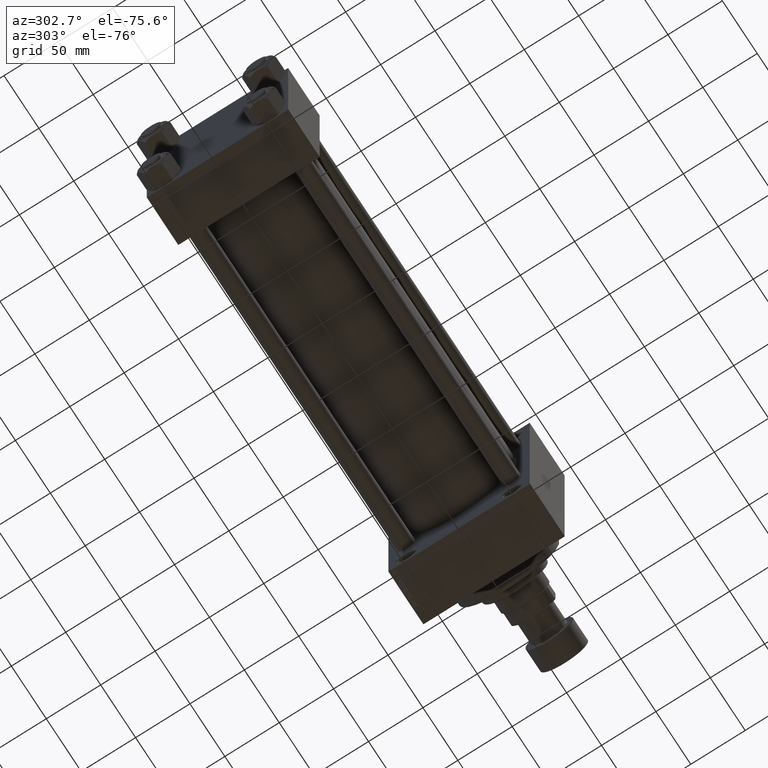
[diagram: clean part render]
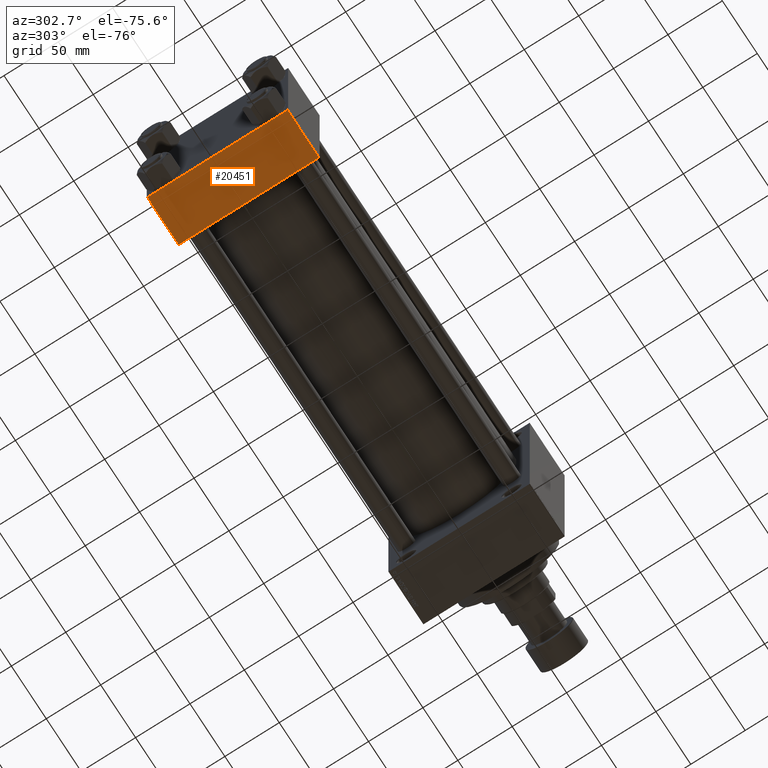
[diagram: same view with one face highlighted and labeled with its STEP entity id]
A machine part, auxiliary view. The second image highlights one B-rep face of the part: STEP entity #20451.
In plain terms, the highlighted planar face has unit normal (0, 0, -1).
Its self-contained STEP definition (entity closure, byte-faithful):
#1004 = CARTESIAN_POINT ( 'NONE',  ( 45.00000000000000000, 64.49999999999997158, -64.99999999999998579 ) ) ;
#3953 = EDGE_LOOP ( 'NONE', ( #17913, #35981, #11791, #25910 ) ) ;
#5525 = PLANE ( 'NONE',  #27889 ) ;
#6583 = CARTESIAN_POINT ( 'NONE',  ( 0.000000000000000000, -64.49999999999994316, -65.00000000000000000 ) ) ;
#6928 = CARTESIAN_POINT ( 'NONE',  ( 45.00000000000000000, 64.49999999999997158, -64.99999999999998579 ) ) ;
#7716 = DIRECTION ( 'NONE',  ( 0.000000000000000000, -1.000000000000000000, -1.067522139062650425E-16 ) ) ;
#11380 = CARTESIAN_POINT ( 'NONE',  ( 0.000000000000000000, 65.00000000000000000, -64.99999999999998579 ) ) ;
#11665 = VECTOR ( 'NONE', #11714, 1000.000000000000000 ) ;
#11714 = DIRECTION ( 'NONE',  ( -1.000000000000000000, 0.000000000000000000, 0.000000000000000000 ) ) ;
#11791 = ORIENTED_EDGE ( 'NONE', *, *, #26604, .T. ) ;
#12043 = VERTEX_POINT ( 'NONE', #22847 ) ;
#13903 = DIRECTION ( 'NONE',  ( 0.000000000000000000, -1.000000000000000000, -1.067522139062650425E-16 ) ) ;
#14084 = DIRECTION ( 'NONE',  ( 0.000000000000000000, 1.000000000000000000, 1.067522139062650548E-16 ) ) ;
#15936 = VECTOR ( 'NONE', #7716, 1000.000000000000000 ) ;
#16751 = CARTESIAN_POINT ( 'NONE',  ( 45.00000000000000000, 65.00000000000000000, -64.99999999999998579 ) ) ;
#17913 = ORIENTED_EDGE ( 'NONE', *, *, #29396, .F. ) ;
#19333 = DIRECTION ( 'NONE',  ( 1.000000000000000000, 0.000000000000000000, 0.000000000000000000 ) ) ;
#19578 = LINE ( 'NONE', #1004, #35787 ) ;
#20451 = ADVANCED_FACE ( 'NONE', ( #38944 ), #5525, .T. ) ;
#20477 = CARTESIAN_POINT ( 'NONE',  ( 45.00000000000000000, 65.00000000000000000, -64.99999999999998579 ) ) ;
#22594 = VERTEX_POINT ( 'NONE', #6583 ) ;
#22847 = CARTESIAN_POINT ( 'NONE',  ( 45.00000000000000000, -64.49999999999994316, -65.00000000000000000 ) ) ;
#23875 = LINE ( 'NONE', #30245, #11665 ) ;
#24784 = DIRECTION ( 'NONE',  ( 0.000000000000000000, 1.067522139062650548E-16, -1.000000000000000000 ) ) ;
#25910 = ORIENTED_EDGE ( 'NONE', *, *, #45276, .T. ) ;
#26604 = EDGE_CURVE ( 'NONE', #35291, #12043, #46595, .T. ) ;
#27889 = AXIS2_PLACEMENT_3D ( 'NONE', #16751, #24784, #14084 ) ;
#28751 = CARTESIAN_POINT ( 'NONE',  ( 0.000000000000000000, 64.49999999999997158, -64.99999999999998579 ) ) ;
#29396 = EDGE_CURVE ( 'NONE', #44191, #22594, #44804, .T. ) ;
#29687 = VECTOR ( 'NONE', #13903, 1000.000000000000000 ) ;
#30245 = CARTESIAN_POINT ( 'NONE',  ( 0.000000000000000000, -64.49999999999994316, -65.00000000000000000 ) ) ;
#35291 = VERTEX_POINT ( 'NONE', #6928 ) ;
#35787 = VECTOR ( 'NONE', #19333, 1000.000000000000000 ) ;
#35981 = ORIENTED_EDGE ( 'NONE', *, *, #44038, .T. ) ;
#38944 = FACE_OUTER_BOUND ( 'NONE', #3953, .T. ) ;
#44038 = EDGE_CURVE ( 'NONE', #44191, #35291, #19578, .T. ) ;
#44191 = VERTEX_POINT ( 'NONE', #28751 ) ;
#44804 = LINE ( 'NONE', #11380, #15936 ) ;
#45276 = EDGE_CURVE ( 'NONE', #12043, #22594, #23875, .T. ) ;
#46595 = LINE ( 'NONE', #20477, #29687 ) ;